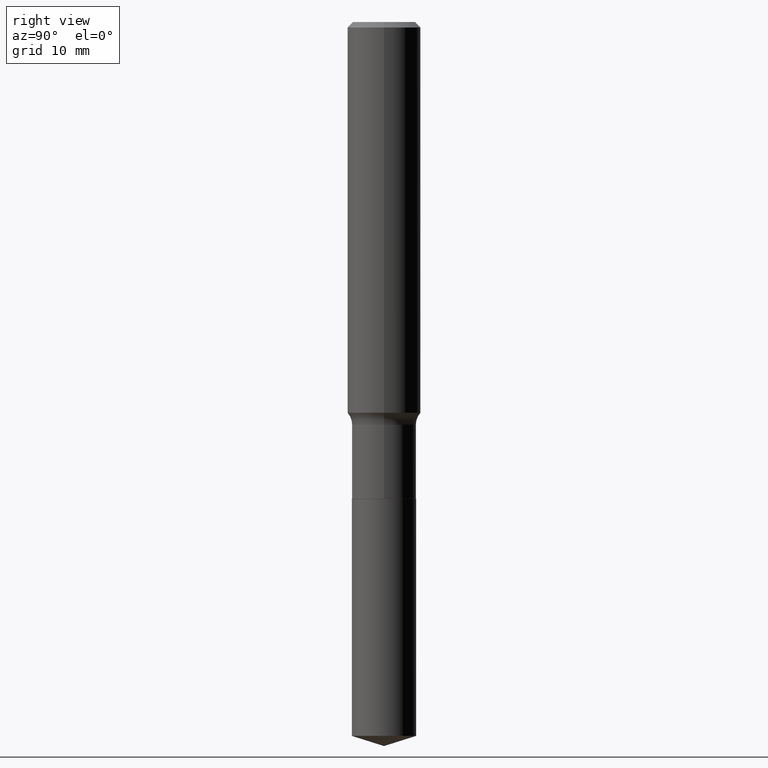
[diagram: clean part render]
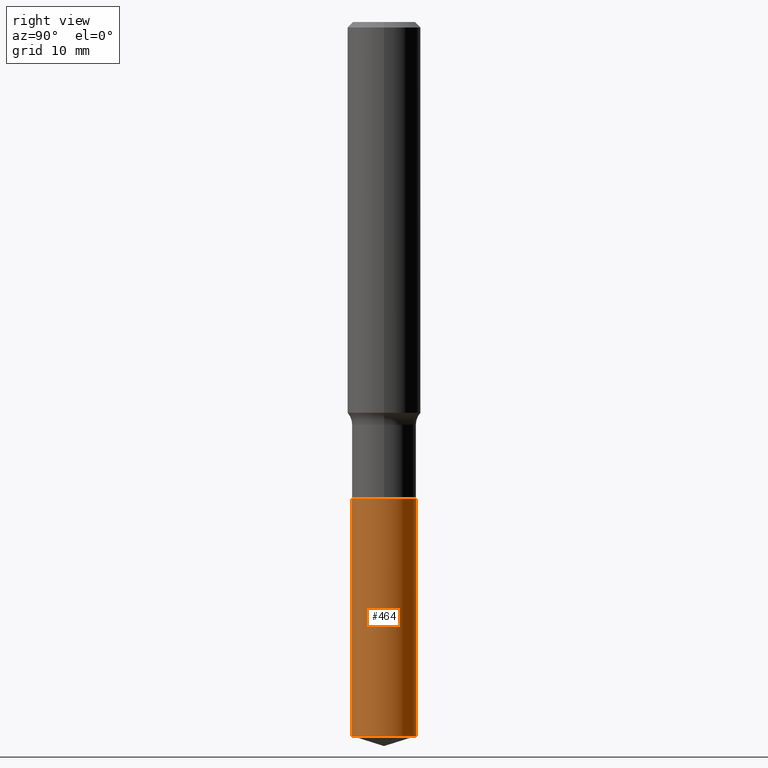
[diagram: same view with one face highlighted and labeled with its STEP entity id]
A machine part, right view. The second image highlights one B-rep face of the part: STEP entity #464.
In plain terms, the highlighted cylindrical surface (edge-blend (fillet) strip) has radius 3.5001 mm, axis along (-0, 0, 1).
Its self-contained STEP definition (entity closure, byte-faithful):
#3 = DIRECTION ( 'NONE',  ( -2.445770876945909598E-29, 3.491048756320918423E-15, 1.000000000000000000 ) ) ;
#37 = CARTESIAN_POINT ( 'NONE',  ( 5.006363740022211680E-29, -7.147760596879688202E-15, -2.047200000000000131 ) ) ;
#80 = DIRECTION ( 'NONE',  ( -2.445770876945909598E-29, 3.491048756320918423E-15, 1.000000000000000000 ) ) ;
#85 = VECTOR ( 'NONE', #143, 39.37007874015748143 ) ;
#95 = CARTESIAN_POINT ( 'NONE',  ( 9.791278898774930393E-16, 0.1377999999999892644, -3.066751826892477606 ) ) ;
#111 = EDGE_LOOP ( 'NONE', ( #293, #148, #488, #164 ) ) ;
#116 = VERTEX_POINT ( 'NONE', #421 ) ;
#143 = DIRECTION ( 'NONE',  ( -2.445770876945909598E-29, 3.491048756320918423E-15, 1.000000000000000000 ) ) ;
#148 = ORIENTED_EDGE ( 'NONE', *, *, #289, .T. ) ;
#151 = VERTEX_POINT ( 'NONE', #95 ) ;
#160 = DIRECTION ( 'NONE',  ( -2.445770876945909598E-29, 3.491048756320918423E-15, 1.000000000000000000 ) ) ;
#164 = ORIENTED_EDGE ( 'NONE', *, *, #309, .F. ) ;
#186 = EDGE_CURVE ( 'NONE', #247, #300, #211, .T. ) ;
#189 = AXIS2_PLACEMENT_3D ( 'NONE', #492, #160, #292 ) ;
#207 = DIRECTION ( 'NONE',  ( -6.982962677686265922E-15, -1.000000000000000000, 3.964946289788480896E-15 ) ) ;
#211 = CIRCLE ( 'NONE', #447, 0.1378000000000000058 ) ;
#222 = CIRCLE ( 'NONE', #189, 0.1378000000000000058 ) ;
#225 = CARTESIAN_POINT ( 'NONE',  ( -9.622522569851173843E-16, -0.1378000000000071668, -2.047199999999999243 ) ) ;
#239 = AXIS2_PLACEMENT_3D ( 'NONE', #37, #80, #207 ) ;
#247 = VERTEX_POINT ( 'NONE', #479 ) ;
#259 = LINE ( 'NONE', #225, #358 ) ;
#289 = EDGE_CURVE ( 'NONE', #151, #300, #311, .T. ) ;
#292 = DIRECTION ( 'NONE',  ( -6.982962677686265922E-15, -1.000000000000000000, 3.964946289788480896E-15 ) ) ;
#293 = ORIENTED_EDGE ( 'NONE', *, *, #445, .T. ) ;
#299 = CYLINDRICAL_SURFACE ( 'NONE', #239, 0.1378000000000000058 ) ;
#300 = VERTEX_POINT ( 'NONE', #316 ) ;
#309 = EDGE_CURVE ( 'NONE', #116, #247, #259, .T. ) ;
#311 = LINE ( 'NONE', #472, #85 ) ;
#316 = CARTESIAN_POINT ( 'NONE',  ( 9.791278898774932365E-16, 0.1377999999999928726, -2.047200000000000575 ) ) ;
#358 = VECTOR ( 'NONE', #489, 39.37007874015748143 ) ;
#378 = CARTESIAN_POINT ( 'NONE',  ( 5.006363740022211680E-29, -7.147760596879688202E-15, -2.047200000000000131 ) ) ;
#383 = FACE_OUTER_BOUND ( 'NONE', #111, .T. ) ;
#421 = CARTESIAN_POINT ( 'NONE',  ( -9.622522569850923380E-16, -0.1378000000000107195, -3.066751826892476718 ) ) ;
#445 = EDGE_CURVE ( 'NONE', #116, #151, #222, .T. ) ;
#447 = AXIS2_PLACEMENT_3D ( 'NONE', #378, #3, #463 ) ;
#463 = DIRECTION ( 'NONE',  ( -6.982962677686265922E-15, -1.000000000000000000, 3.964946289788480896E-15 ) ) ;
#464 = ADVANCED_FACE ( 'NONE', ( #383 ), #299, .T. ) ;
#472 = CARTESIAN_POINT ( 'NONE',  ( 9.791278898774681901E-16, 0.1377999999999928726, -2.047200000000000575 ) ) ;
#479 = CARTESIAN_POINT ( 'NONE',  ( -9.622522569851173843E-16, -0.1378000000000071668, -2.047199999999999243 ) ) ;
#488 = ORIENTED_EDGE ( 'NONE', *, *, #186, .F. ) ;
#489 = DIRECTION ( 'NONE',  ( -2.445770876945909598E-29, 3.491048756320918423E-15, 1.000000000000000000 ) ) ;
#492 = CARTESIAN_POINT ( 'NONE',  ( 7.499953905772830798E-29, -1.070706573415739068E-14, -3.066751826892477162 ) ) ;